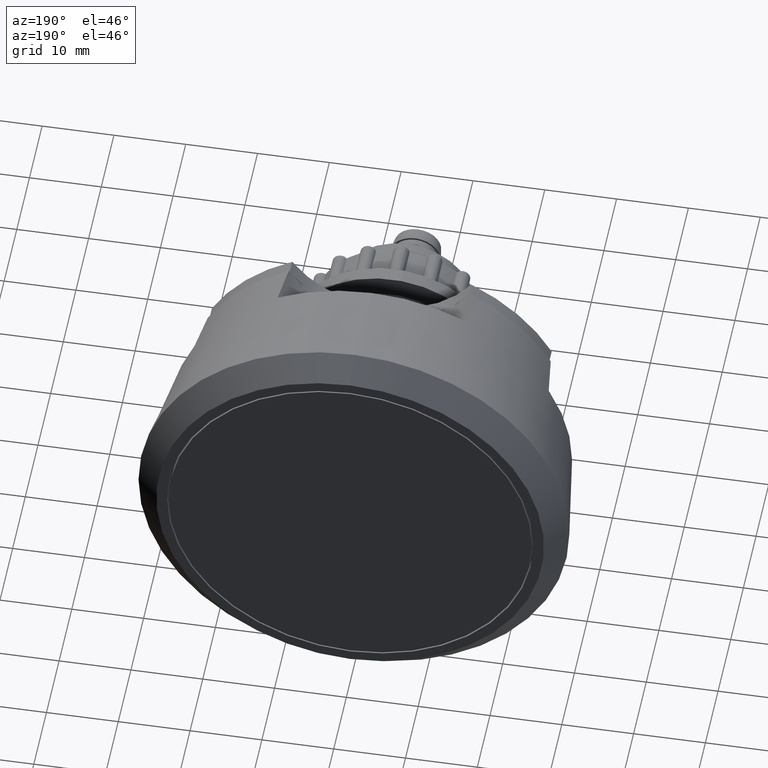
[diagram: clean part render]
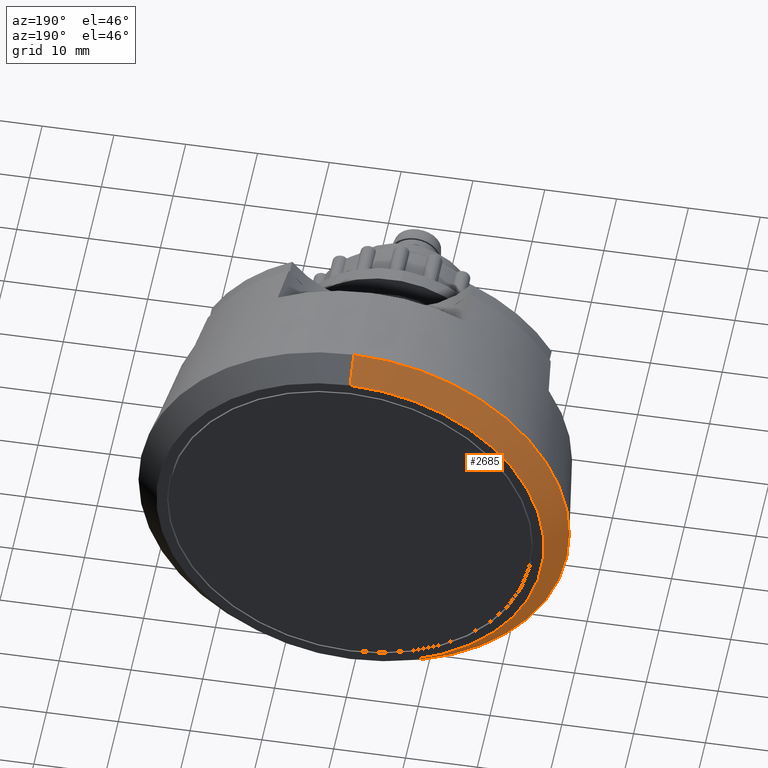
[diagram: same view with one face highlighted and labeled with its STEP entity id]
A machine part, auxiliary view. The second image highlights one B-rep face of the part: STEP entity #2685.
In plain terms, the highlighted conical surface has half-angle 45 deg.
Its self-contained STEP definition (entity closure, byte-faithful):
#151 = ORIENTED_EDGE ( 'NONE', *, *, #6304, .T. ) ;
#205 = CARTESIAN_POINT ( 'NONE',  ( 3.490243377569948961E-15, 47.00000000000004263, 26.99999999999991473 ) ) ;
#246 = CARTESIAN_POINT ( 'NONE',  ( 0.0000000000000000000, 43.99999999999998579, 0.0000000000000000000 ) ) ;
#420 = CARTESIAN_POINT ( 'NONE',  ( 3.673940397442056022E-15, 43.99999999999998579, 29.99999999999997513 ) ) ;
#428 = DIRECTION ( 'NONE',  ( 0.0000000000000000000, -1.000000000000000000, 0.0000000000000000000 ) ) ;
#861 = AXIS2_PLACEMENT_3D ( 'NONE', #246, #2926, #6714 ) ;
#1015 = VECTOR ( 'NONE', #3655, 1000.000000000000114 ) ;
#1018 = LINE ( 'NONE', #4778, #6789 ) ;
#1137 = CARTESIAN_POINT ( 'NONE',  ( 0.0000000000000000000, 43.99999999999999289, 0.0000000000000000000 ) ) ;
#1198 = ORIENTED_EDGE ( 'NONE', *, *, #2902, .F. ) ;
#1236 = DIRECTION ( 'NONE',  ( 0.0000000000000000000, -1.000000000000000000, 0.0000000000000000000 ) ) ;
#1500 = CARTESIAN_POINT ( 'NONE',  ( 3.673940397442055233E-15, 43.99999999999999289, 29.99999999999996803 ) ) ;
#1877 = EDGE_CURVE ( 'NONE', #5201, #4504, #1018, .T. ) ;
#2118 = CARTESIAN_POINT ( 'NONE',  ( 0.0000000000000000000, 47.00000000000004263, 0.0000000000000000000 ) ) ;
#2464 = EDGE_LOOP ( 'NONE', ( #4774, #151, #6587, #1198 ) ) ;
#2596 = CARTESIAN_POINT ( 'NONE',  ( 0.0000000000000000000, 47.00000000000004263, -26.99999999999991473 ) ) ;
#2685 = ADVANCED_FACE ( 'NONE', ( #4359 ), #5383, .T. ) ;
#2877 = CIRCLE ( 'NONE', #861, 29.99999999999996092 ) ;
#2902 = EDGE_CURVE ( 'NONE', #4727, #4504, #2877, .T. ) ;
#2926 = DIRECTION ( 'NONE',  ( -0.0000000000000000000, -1.000000000000000000, -0.0000000000000000000 ) ) ;
#3655 = DIRECTION ( 'NONE',  ( 8.659560562354932858E-17, -0.7071067811865474617, 0.7071067811865474617 ) ) ;
#3747 = DIRECTION ( 'NONE',  ( 0.0000000000000000000, -0.7071067811865474617, -0.7071067811865474617 ) ) ;
#4359 = FACE_OUTER_BOUND ( 'NONE', #2464, .T. ) ;
#4504 = VERTEX_POINT ( 'NONE', #5304 ) ;
#4727 = VERTEX_POINT ( 'NONE', #420 ) ;
#4774 = ORIENTED_EDGE ( 'NONE', *, *, #5704, .F. ) ;
#4778 = CARTESIAN_POINT ( 'NONE',  ( 0.0000000000000000000, 43.99999999999999289, -29.99999999999996803 ) ) ;
#5054 = VERTEX_POINT ( 'NONE', #205 ) ;
#5062 = DIRECTION ( 'NONE',  ( 0.0000000000000000000, 0.0000000000000000000, -1.000000000000000000 ) ) ;
#5201 = VERTEX_POINT ( 'NONE', #2596 ) ;
#5282 = DIRECTION ( 'NONE',  ( 0.0000000000000000000, 0.0000000000000000000, -1.000000000000000000 ) ) ;
#5304 = CARTESIAN_POINT ( 'NONE',  ( 0.0000000000000000000, 43.99999999999998579, -29.99999999999997513 ) ) ;
#5383 = CONICAL_SURFACE ( 'NONE', #5610, 29.99999999999996803, 0.7853981633974482790 ) ;
#5610 = AXIS2_PLACEMENT_3D ( 'NONE', #1137, #1236, #5062 ) ;
#5637 = CIRCLE ( 'NONE', #6760, 26.99999999999991473 ) ;
#5704 = EDGE_CURVE ( 'NONE', #5054, #4727, #6278, .T. ) ;
#6278 = LINE ( 'NONE', #1500, #1015 ) ;
#6304 = EDGE_CURVE ( 'NONE', #5054, #5201, #5637, .T. ) ;
#6587 = ORIENTED_EDGE ( 'NONE', *, *, #1877, .T. ) ;
#6714 = DIRECTION ( 'NONE',  ( 0.0000000000000000000, 0.0000000000000000000, 1.000000000000000000 ) ) ;
#6760 = AXIS2_PLACEMENT_3D ( 'NONE', #2118, #428, #5282 ) ;
#6789 = VECTOR ( 'NONE', #3747, 1000.000000000000114 ) ;